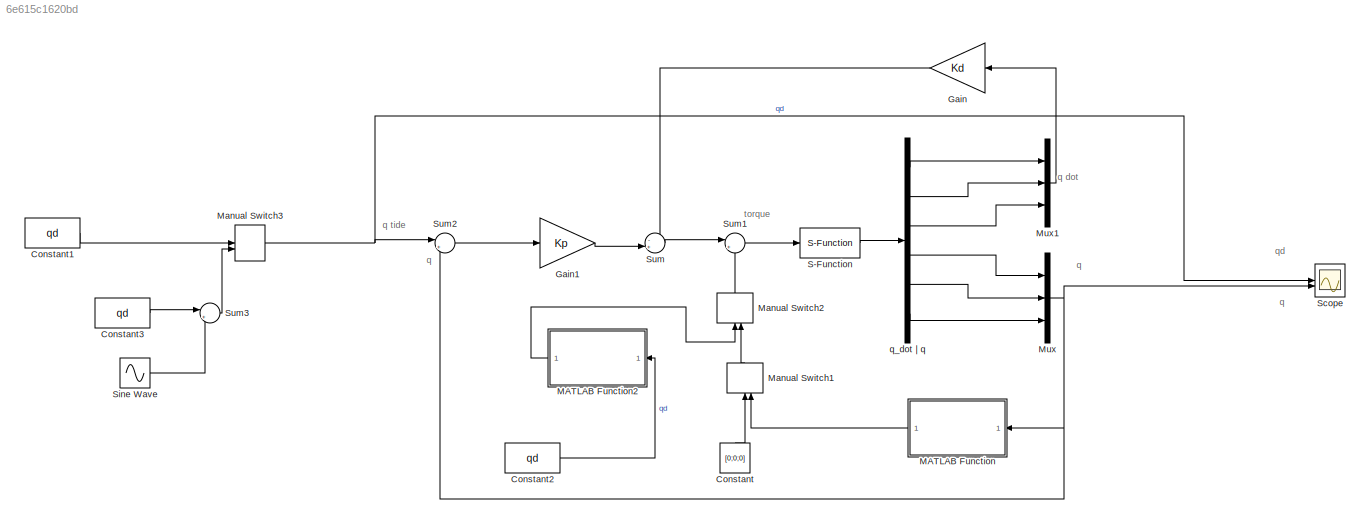
MODEL slx_6e615c1620bd
KIND model
CONFIG AbsTol = auto
CONFIG EnableMultiTasking = off
CONFIG FixedStep = auto
CONFIG MaxStep = auto
CONFIG MinStep = auto
CONFIG RelTol = 1e-3
CONFIG SampleTimeConstraint = Unconstrained
CONFIG SolverName = VariableStepAuto
CONFIG StartTime = 0.0
CONFIG StopTime = 10.0
BLOCK [Constant] Constant
  NameLocation = right
  Value = [0;0;0]
BLOCK [Constant] Constant1
  Value = qd
BLOCK [Constant] Constant2
  Value = qd
BLOCK [Constant] Constant3
  Value = qd
BLOCK [Gain] Gain
  Gain = Kd
  Multiplication = Matrix(K*u)
  NameLocation = top
BLOCK [Gain] Gain1
  Gain = Kp
  Multiplication = Matrix(K*u)
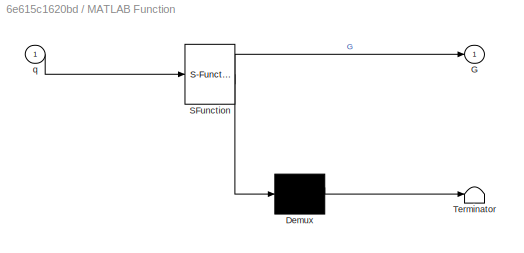
BLOCK [SubSystem] MATLAB Function
  ErrorFcn = Stateflow.Translate.translate
  LibrarySourceBlock = simulink/User-Defined\nFunctions/MATLAB Function
  NameLocation = top
  PermitHierarchicalResolution = ExplicitOnly
  SFBlockType = MATLAB Function
  TreatAsAtomicUnit = on
BLOCK [Demux] MATLAB Function/ Demux 
  Outputs = 1
BLOCK [S-Function] MATLAB Function/ SFunction 
  EnableBusSupport = on
  FunctionName = sf_sfun
  Parameters = params
  PortCounts = [1 2]
  SFcnIsStateOwnerBlock = off
  SFunctionDeploymentMode = off
  Tag = Stateflow S-Function 2
BLOCK [Terminator] MATLAB Function/ Terminator 
BLOCK [Outport] MATLAB Function/G
BLOCK [Inport] MATLAB Function/q
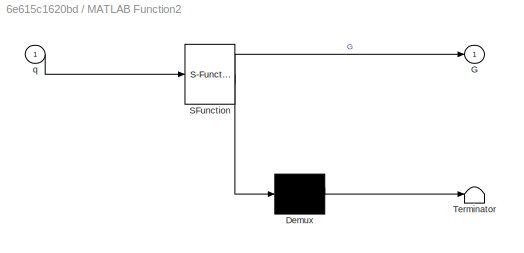
BLOCK [SubSystem] MATLAB Function2
  ErrorFcn = Stateflow.Translate.translate
  LibrarySourceBlock = simulink/User-Defined\nFunctions/MATLAB Function
  NameLocation = top
  PermitHierarchicalResolution = ExplicitOnly
  SFBlockType = MATLAB Function
  TreatAsAtomicUnit = on
BLOCK [Demux] MATLAB Function2/ Demux 
  Outputs = 1
BLOCK [S-Function] MATLAB Function2/ SFunction 
  EnableBusSupport = on
  FunctionName = sf_sfun
  Parameters = params
  PortCounts = [1 2]
  SFcnIsStateOwnerBlock = off
  SFunctionDeploymentMode = off
  Tag = Stateflow S-Function 3
BLOCK [Terminator] MATLAB Function2/ Terminator 
BLOCK [Outport] MATLAB Function2/G
BLOCK [Inport] MATLAB Function2/q
BLOCK [ManualSwitch] Manual Switch1
  CurrentSetting = 0
BLOCK [ManualSwitch] Manual Switch2
  CurrentSetting = 0
  NameLocation = left
BLOCK [ManualSwitch] Manual Switch3
  CurrentSetting = 0
  NameLocation = left
BLOCK [Mux] Mux
  DisplayOption = bar
  Inputs = 3
BLOCK [Mux] Mux1
  DisplayOption = bar
  Inputs = 3
BLOCK [S-Function] S-Function
  EnableBusSupport = off
  FunctionName = Manipulator
  Parameters = params
  SFcnIsStateOwnerBlock = off
  SFunctionDeploymentMode = off
BLOCK [Scope] Scope
  Floating = off
  NumInputPorts = 2
  ScopeSpecificationString = Simulink.scopes.TimeScopeBlockCfg('CurrentConfiguration', extmgr.ConfigurationSet(extmgr.Configuration('Core','General UI',true,'DisplayFullSourceName',true),extmgr.Configuration('Core','Source UI',true),extmgr.Configuration('Sources','WiredSimulink',true),extmgr.Configuration('Visuals','Time Domain',true,'SerializedDisplays',{struct('MinYLimReal','-0.63211','MaxYLimReal','1.35321','YLabelReal',''...<+1659ch>
BLOCK [Sin] Sine Wave
  Amplitude = 0.1
  Frequency = 2*pi*Fc
  SampleTime = 0
BLOCK [Sum] Sum
  Inputs = -+|
BLOCK [Sum] Sum1
  Inputs = |++
BLOCK [Sum] Sum2
  Inputs = |+-
BLOCK [Sum] Sum3
  Inputs = |++
BLOCK [Demux] q_dot | q
  Outputs = 6
ANNOTATION (root): q dot
ANNOTATION (root): q
ANNOTATION (root): q tide
ANNOTATION (root): qd
ANNOTATION (root): torque
LINE Constant1:1 -> Manual Switch3:1
LINE Constant2:1 -> MATLAB Function2:1
LINE Constant3:1 -> Sum3:1
LINE Constant:1 -> Manual Switch1:1
LINE Gain1:1 -> Sum:2
LINE Gain:1 -> Sum:1
LINE MATLAB Function2:1 -> Manual Switch2:1
LINE MATLAB Function:1 -> Manual Switch1:2
LINE Manual Switch1:1 -> Manual Switch2:2
LINE Manual Switch2:1 -> Sum1:2
NET Manual Switch3:1 -> Scope:1, Sum2:1
LINE Mux1:1 -> Gain:1
NET Mux:1 -> MATLAB Function:1, Scope:2, Sum2:2
LINE S-Function:1 -> q_dot | q:1
LINE Sine Wave:1 -> Sum3:2
LINE Sum1:1 -> S-Function:1
LINE Sum2:1 -> Gain1:1
LINE Sum3:1 -> Manual Switch3:2
LINE Sum:1 -> Sum1:1
LINE q_dot | q:1 -> Mux1:1
LINE q_dot | q:2 -> Mux1:2
LINE q_dot | q:3 -> Mux1:3
LINE q_dot | q:4 -> Mux:1
LINE q_dot | q:5 -> Mux:2
LINE q_dot | q:6 -> Mux:3
note: NET lines group one-source signal fan-out (src -> all destinations, sorted); 1:1 wires keep LINE
CHART MATLAB Function2 states=1 transitions=1
  STATE_LABEL 'eML_blk_kernel()'
  STATE_LABEL 'SCRIPT:\nfunction G = gravityMatrix(q, params)\n    q1 = q(1);\n    q2 = q(2);\n    q3 = q(3);\n    \n    g = params.g;\n\n    m1 = params.m(1);\n    m2 = params.m(2);\n    m3 = params.m(3);\n\n    a1 = 0.02;\n    a2 = 0.03;\n    a3 = 0.01;\n    b1 = 0.1256;\n    b2 = 0.03;\n    b3 = 0.01;\n    c1 = 0.4;\n    c2 = 0.46;\n    c3 = 0.15;\n\n    G = [(c1*g*m1*cos(q1))/2 + g*m2*cos(q1)*(c1 - c2/2) + g*m3*cos(q1)*(c1 + c3/2...<+44ch>'
CHART MATLAB Function states=1 transitions=1
  STATE_LABEL 'eML_blk_kernel()'
  STATE_LABEL 'SCRIPT:\nfunction G = gravityMatrix(q, params)\n    q1 = q(1);\n    q2 = q(2);\n    q3 = q(3);\n    \n    g = params.g;\n\n    m1 = params.m(1);\n    m2 = params.m(2);\n    m3 = params.m(3);\n\n    a1 = 0.02;\n    a2 = 0.03;\n    a3 = 0.01;\n    b1 = 0.1256;\n    b2 = 0.03;\n    b3 = 0.01;\n    c1 = 0.4;\n    c2 = 0.46;\n    c3 = 0.15;\n\n    G = [(c1*g*m1*cos(q1))/2 + g*m2*cos(q1)*(c1 - c2/2) + g*m3*cos(q1)*(c1 + c3/2...<+44ch>'
CHART  states=0 transitions=0
CHART  states=0 transitions=0
